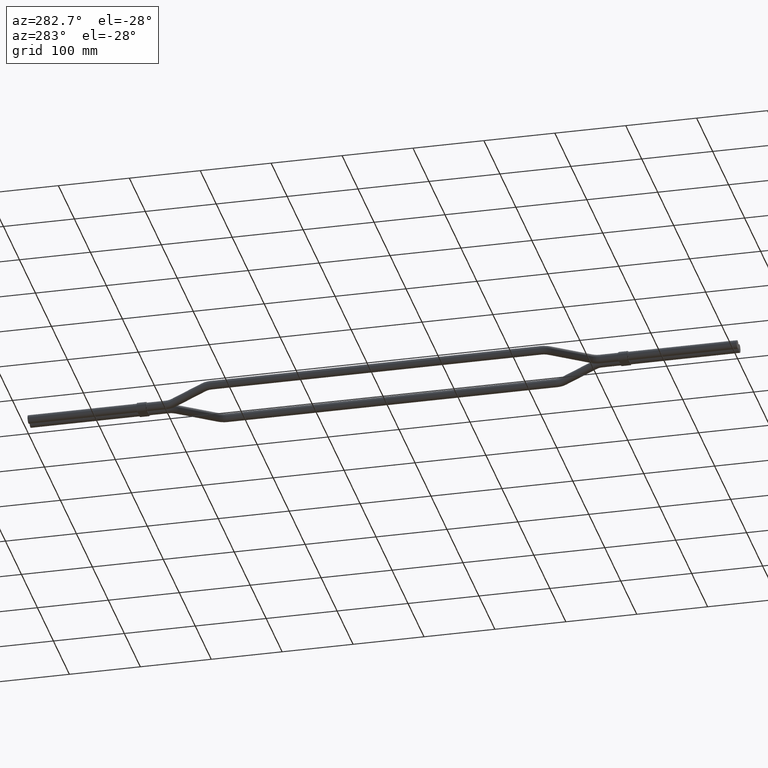
[diagram: clean part render]
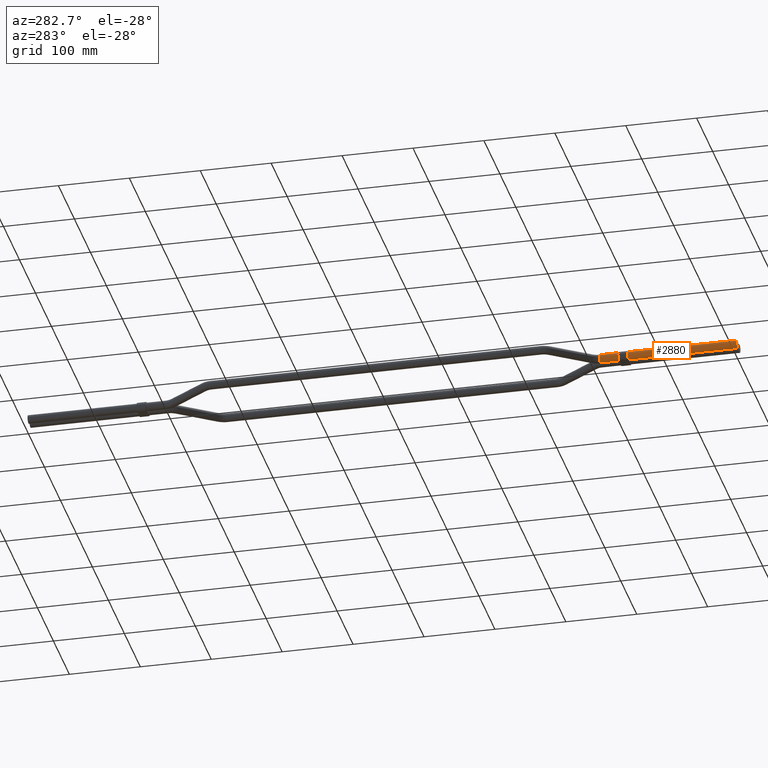
[diagram: same view with one face highlighted and labeled with its STEP entity id]
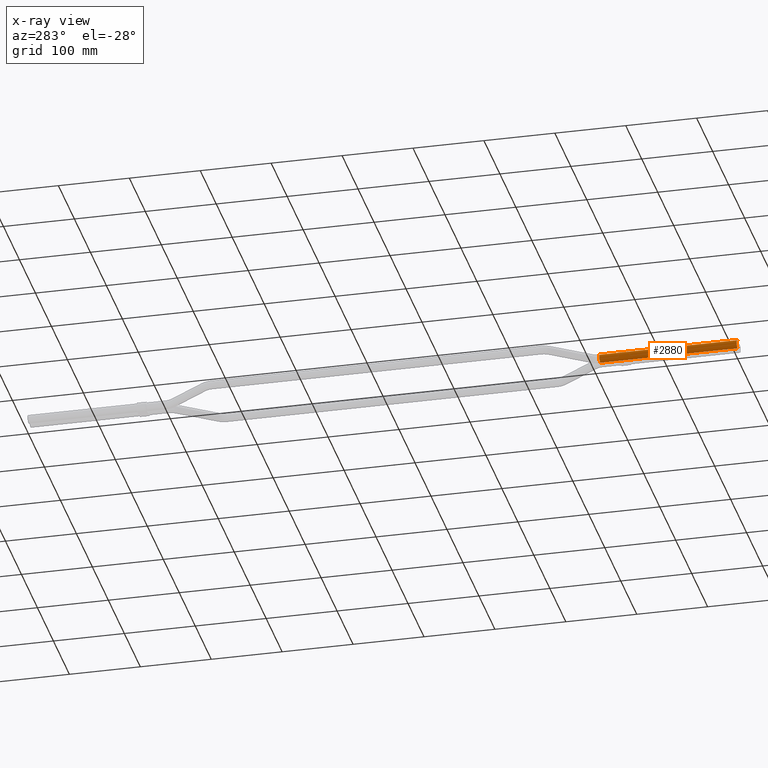
[diagram: x-ray of the same camera — body ghosted, the highlighted face saturated]
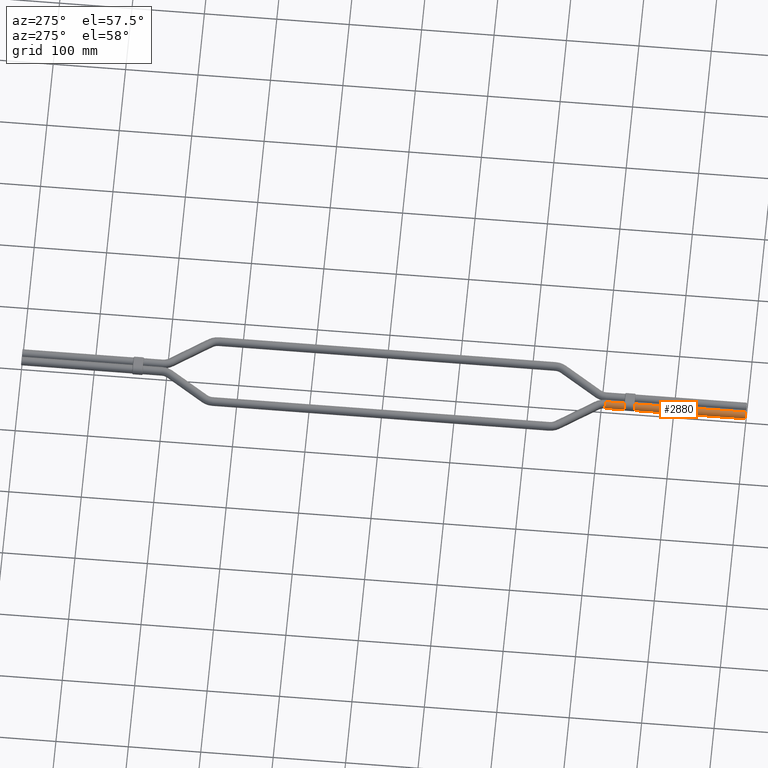
[diagram: same view with one face highlighted and labeled with its STEP entity id]
A machine part, auxiliary view. The second image highlights one B-rep face of the part: STEP entity #2880.
The next image is the same camera in x-ray: the body ghosted, the highlighted face saturated — about 0% of this face is hidden behind the body in this view.
A second angle (auxiliary view) of the same face is appended — the face is thin or edge-on in the first view.
In plain terms, the highlighted cylindrical surface (edge-blend (fillet) strip) has radius 6 mm, axis along (-0, -1, -0).
Its self-contained STEP definition (entity closure, byte-faithful):
#148 = CARTESIAN_POINT ( 'NONE',  ( 7.347880794884120700E-016, 0.0000000000000000000, 6.000000000000000900 ) ) ;
#416 = LINE ( 'NONE', #3087, #2469 ) ;
#471 = VERTEX_POINT ( 'NONE', #4522 ) ;
#715 = ORIENTED_EDGE ( 'NONE', *, *, #3656, .F. ) ;
#1188 = CARTESIAN_POINT ( 'NONE',  ( 0.0000000000000000000, 193.6940242224202100, 0.0000000000000000000 ) ) ;
#1287 = DIRECTION ( 'NONE',  ( 0.0000000000000000000, 1.000000000000000000, 0.0000000000000000000 ) ) ;
#1300 = LINE ( 'NONE', #4014, #1504 ) ;
#1356 = ORIENTED_EDGE ( 'NONE', *, *, #3603, .F. ) ;
#1504 = VECTOR ( 'NONE', #7451, 1000.000000000000000 ) ;
#1678 = CIRCLE ( 'NONE', #3508, 6.000000000000000900 ) ;
#1724 = VERTEX_POINT ( 'NONE', #6129 ) ;
#1830 = DIRECTION ( 'NONE',  ( 0.0000000000000000000, 0.0000000000000000000, 1.000000000000000000 ) ) ;
#2106 = CARTESIAN_POINT ( 'NONE',  ( 0.0000000000000000000, 0.0000000000000000000, 0.0000000000000000000 ) ) ;
#2302 = ORIENTED_EDGE ( 'NONE', *, *, #5102, .T. ) ;
#2460 = VERTEX_POINT ( 'NONE', #2961 ) ;
#2469 = VECTOR ( 'NONE', #3699, 1000.000000000000000 ) ;
#2714 = VERTEX_POINT ( 'NONE', #148 ) ;
#2746 = DIRECTION ( 'NONE',  ( 0.0000000000000000000, 0.0000000000000000000, 1.000000000000000000 ) ) ;
#2870 = CIRCLE ( 'NONE', #5046, 6.000000000000000900 ) ;
#2880 = ADVANCED_FACE ( 'NONE', ( #7614 ), #7436, .T. ) ;
#2893 = EDGE_CURVE ( 'NONE', #2460, #1724, #1300, .T. ) ;
#2961 = CARTESIAN_POINT ( 'NONE',  ( 0.0000000000000000000, 193.6940242224202100, -6.000000000000000900 ) ) ;
#3087 = CARTESIAN_POINT ( 'NONE',  ( 7.347880794884120700E-016, 193.6940242224202100, 6.000000000000000900 ) ) ;
#3398 = DIRECTION ( 'NONE',  ( 0.0000000000000000000, 0.0000000000000000000, -1.000000000000000000 ) ) ;
#3508 = AXIS2_PLACEMENT_3D ( 'NONE', #2106, #6325, #2746 ) ;
#3545 = AXIS2_PLACEMENT_3D ( 'NONE', #4625, #6899, #3398 ) ;
#3603 = EDGE_CURVE ( 'NONE', #2460, #471, #6246, .T. ) ;
#3656 = EDGE_CURVE ( 'NONE', #471, #5367, #2870, .T. ) ;
#3699 = DIRECTION ( 'NONE',  ( -0.0000000000000000000, -1.000000000000000000, -0.0000000000000000000 ) ) ;
#4014 = CARTESIAN_POINT ( 'NONE',  ( 0.0000000000000000000, 193.6940242224202100, -6.000000000000000900 ) ) ;
#4303 = CARTESIAN_POINT ( 'NONE',  ( 7.347880794884120700E-016, 193.6940242224202100, 6.000000000000000900 ) ) ;
#4522 = CARTESIAN_POINT ( 'NONE',  ( -6.000000000000000900, 193.6940242224202100, -7.347880794884119700E-016 ) ) ;
#4528 = EDGE_LOOP ( 'NONE', ( #6451, #715, #1356, #5333, #2302 ) ) ;
#4625 = CARTESIAN_POINT ( 'NONE',  ( 0.0000000000000000000, 193.6940242224202100, 0.0000000000000000000 ) ) ;
#5022 = CARTESIAN_POINT ( 'NONE',  ( 0.0000000000000000000, 193.6940242224202100, 0.0000000000000000000 ) ) ;
#5046 = AXIS2_PLACEMENT_3D ( 'NONE', #5022, #1287, #5605 ) ;
#5102 = EDGE_CURVE ( 'NONE', #1724, #2714, #1678, .T. ) ;
#5333 = ORIENTED_EDGE ( 'NONE', *, *, #2893, .T. ) ;
#5367 = VERTEX_POINT ( 'NONE', #4303 ) ;
#5512 = DIRECTION ( 'NONE',  ( 0.0000000000000000000, 1.000000000000000000, 0.0000000000000000000 ) ) ;
#5605 = DIRECTION ( 'NONE',  ( 0.0000000000000000000, 0.0000000000000000000, 1.000000000000000000 ) ) ;
#5799 = EDGE_CURVE ( 'NONE', #5367, #2714, #416, .T. ) ;
#5840 = AXIS2_PLACEMENT_3D ( 'NONE', #1188, #5512, #1830 ) ;
#6129 = CARTESIAN_POINT ( 'NONE',  ( 0.0000000000000000000, 0.0000000000000000000, -6.000000000000000900 ) ) ;
#6246 = CIRCLE ( 'NONE', #5840, 6.000000000000000900 ) ;
#6325 = DIRECTION ( 'NONE',  ( 0.0000000000000000000, 1.000000000000000000, 0.0000000000000000000 ) ) ;
#6451 = ORIENTED_EDGE ( 'NONE', *, *, #5799, .F. ) ;
#6899 = DIRECTION ( 'NONE',  ( -0.0000000000000000000, -1.000000000000000000, -0.0000000000000000000 ) ) ;
#7436 = CYLINDRICAL_SURFACE ( 'NONE', #3545, 6.000000000000000900 ) ;
#7451 = DIRECTION ( 'NONE',  ( -0.0000000000000000000, -1.000000000000000000, -0.0000000000000000000 ) ) ;
#7614 = FACE_OUTER_BOUND ( 'NONE', #4528, .T. ) ;